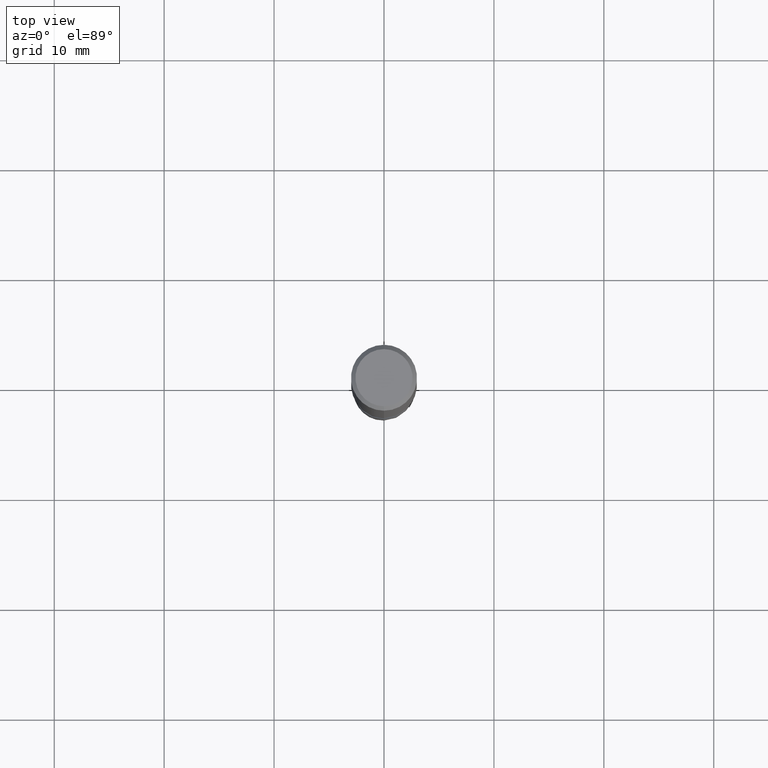
[diagram: clean part render]
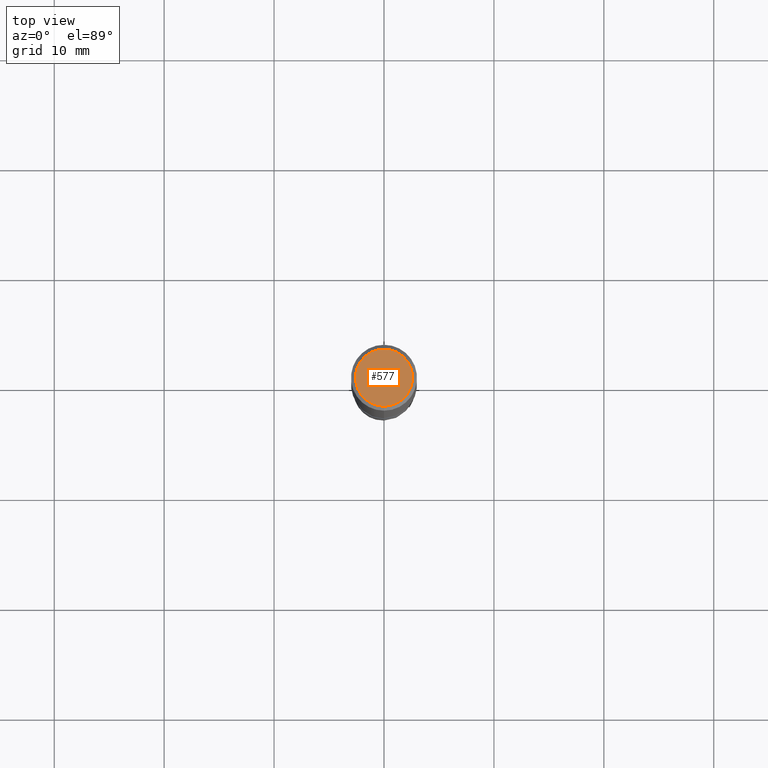
[diagram: same view with one face highlighted and labeled with its STEP entity id]
A machine part, top view. The second image highlights one B-rep face of the part: STEP entity #577.
In plain terms, the highlighted planar face has unit normal (-0, 0, 1).
Its self-contained STEP definition (entity closure, byte-faithful):
#303=VERTEX_POINT('',#798);
#407=VERTEX_POINT('',#910);
#411=EDGE_CURVE('',#407,#303,#914,.T.);
#577=ADVANCED_FACE('',(#1094),#1095,.T.);
#625=EDGE_CURVE('',#303,#407,#1147,.T.);
#798=CARTESIAN_POINT('',(3.18397651993818E-016,-2.6,0.0));
#910=CARTESIAN_POINT('',(0.0,2.6,0.0));
#914=CIRCLE('',#2305,2.6);
#1094=FACE_OUTER_BOUND('',#4526,.T.);
#1095=PLANE('',#4527);
#1147=CIRCLE('',#4611,2.6);
#2305=AXIS2_PLACEMENT_3D('',#5253,#5254,#5255);
#4526=EDGE_LOOP('',(#5429,#5430));
#4527=AXIS2_PLACEMENT_3D('',#5431,#5432,#5433);
#4611=AXIS2_PLACEMENT_3D('',#5493,#5494,#5495);
#5253=CARTESIAN_POINT('',(0.0,0.0,0.0));
#5254=DIRECTION('',(0.0,0.0,-1.0));
#5255=DIRECTION('',(0.0,1.0,0.0));
#5429=ORIENTED_EDGE('',*,*,#411,.F.);
#5430=ORIENTED_EDGE('',*,*,#625,.F.);
#5431=CARTESIAN_POINT('',(0.0,1.3,0.0));
#5432=DIRECTION('',(-0.0,0.0,1.0));
#5433=DIRECTION('',(0.0,-1.0,0.0));
#5493=CARTESIAN_POINT('',(0.0,0.0,0.0));
#5494=DIRECTION('',(0.0,0.0,-1.0));
#5495=DIRECTION('',(0.0,1.0,0.0));